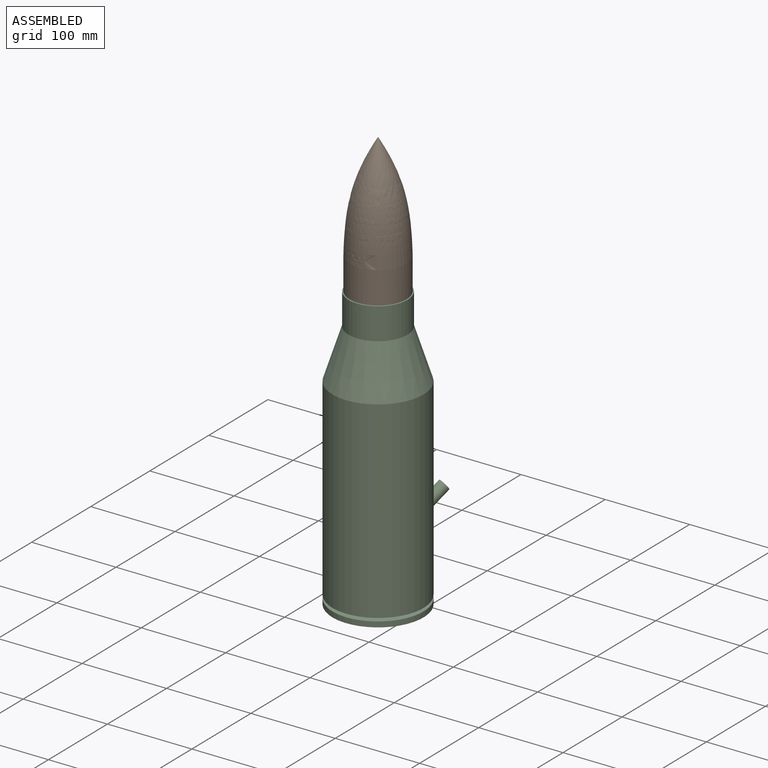
[diagram: assembled view]
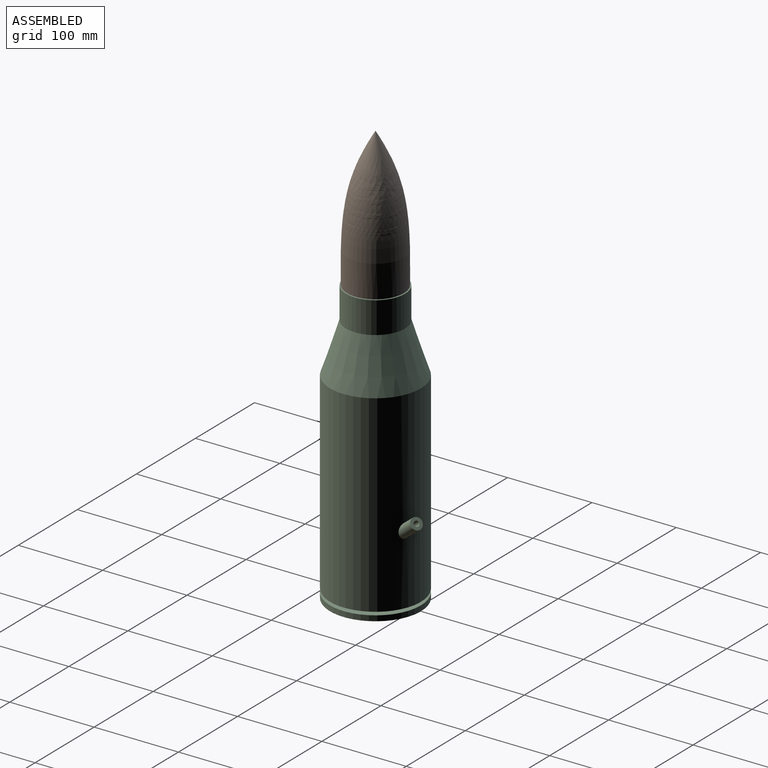
[diagram: assembled view, second angle]
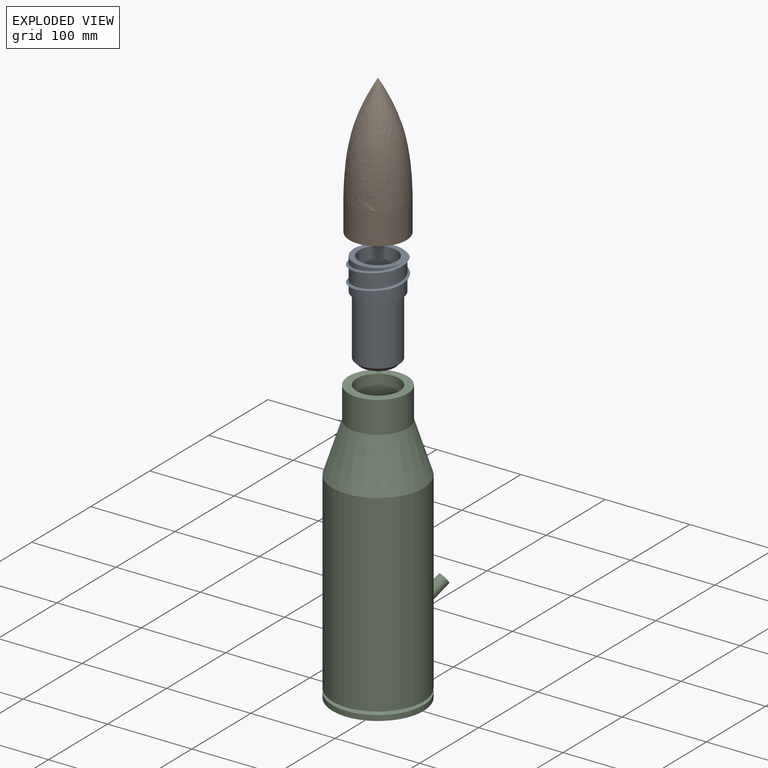
[diagram: exploded view]
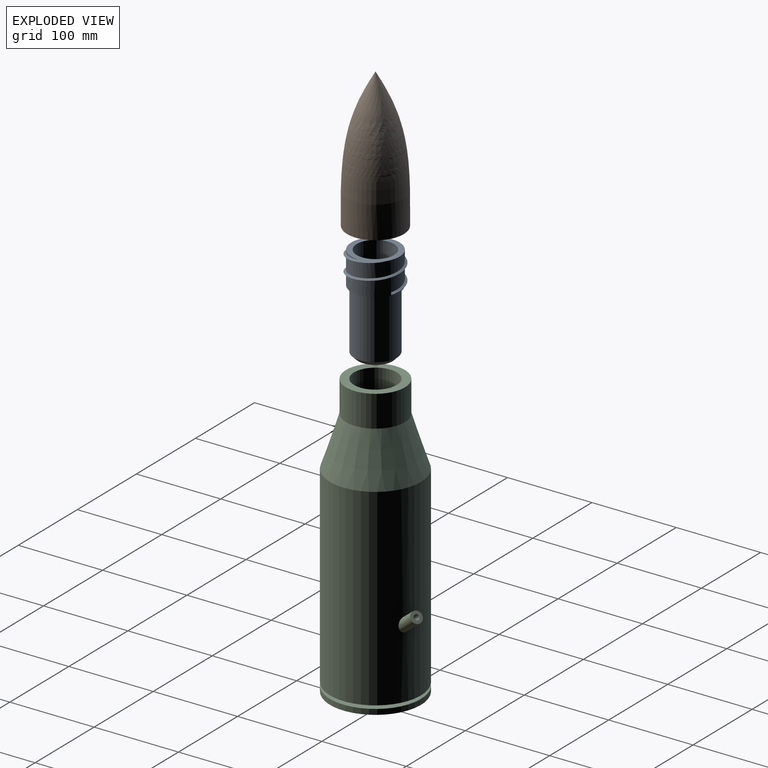
[diagram: exploded view, second angle]
ASSEMBLY  parts=3 mates=2
PART A: 13 faces, bbox 62.5x65.7x116.5 mm
  f0: bspline ~65.43x62.22mm, area 1025.1mm2, adj f1,f2,f9,f10,f11
  f1: bspline ~65.43x62.22mm, area 1066.9mm2, adj f0,f2,f8,f9,f11
  f2: plane 57.42x57.42mm, normal (0,0,1), area 1049.5mm2, adj f0,f1,f3,f9,f10
  f3: cylinder r=22.23mm len=111.13mm, axis (0,0,1), area 15517.9mm2, adj f2,f4
  f4: plane 44.45x44.45mm, normal (0,0,1), area 1551.8mm2, adj f3
  f5: plane 40.64x40.64mm, normal (0,0,-1), area 1297.2mm2, adj f12
  f6: cylinder r=25.4mm len=71.12mm, axis (0,0,1), area 11350.2mm2, adj f7,f12
  f7: plane 57.15x57.15mm, normal (0,0,-1), area 538.4mm2, adj f6,f8
  f8: cylinder r=28.57mm len=57.15mm, axis (0,0,1), area 1798.7mm2, adj f1,f7,f9,f11
  f9: cylinder r=28.57mm len=57.15mm, axis (0,0,1), area 2893.5mm2, adj f0,f1,f2,f8,f10
  f10: cylinder r=28.57mm len=57.15mm, axis (0,0,1), area 1151.3mm2, adj f0,f2,f9
  f11: plane 2.93x2.54mm, normal (0,-1,0), area 3.7mm2, adj f0,f1,f8
  f12: cone r=25.4mm half-angle=45deg, axis (0,0,1), area 1031.9mm2, adj f5,f6
PART B: 11 faces, bbox 67.3x67.3x168.3 mm
  f0: cylinder r=28.57mm len=57.15mm, axis (0,0,-1), area 5846.2mm2, adj f1,f2,f7,f8,f9,f10
  f1: plane 57.16x57.16mm, normal (0,0,-1), area 737.8mm2, adj f0,f5,f6,f9
  f2: plane 67.32x67.32mm, normal (0,0,-1), area 950.7mm2, adj f0,f3,f7,f9,f10
  f3: cylinder r=33.65mm len=67.31mm, axis (0,0,-1), area 8056.6mm2, adj f2,f4
  f4: revolved ~127.11x67.22mm, area 19201.5mm2, adj f3
  f5: cone r=24.12mm half-angle=36.7deg, axis (0,0,-1), area 3055.6mm2, adj f1
  f6: cylinder r=28.57mm len=0.6mm, axis (0,0,1), area 0mm2, adj f1,f8,f9
  f7: plane 0.13x0.08mm, normal (0,1,0), area 0mm2, adj f0,f2,f9
  f8: plane 3.19x2.76mm, normal (0,-1,0), area 4.4mm2, adj f0,f6,f9,f10
  f9: bspline ~65.86x62.64mm, area 1175.5mm2, adj f0,f1,f2,f6,f7,f8,f10
  f10: bspline ~65.86x62.64mm, area 1131.6mm2, adj f0,f2,f8,f9
PART C: 24 faces, bbox 108x133.8x335.1 mm
  f0: cylinder r=53.98mm len=228.74mm, axis (0,0,-1), area 77391.8mm2, adj f3,f4,f18
  f1: cylinder r=44.45mm len=217.72mm, axis (0,0,-1), area 60622.4mm2, adj f8,f9,f16
  f2: cylinder r=33.86mm len=67.71mm, axis (0,0,-1), area 810.5mm2, adj f3,f12
  f3: plane 107.95x107.95mm, normal (0,0,-1), area 5551.4mm2, adj f0,f2
  f4: cone r=53.98mm half-angle=17.9deg, axis (0,0,-1), area 17293.5mm2, adj f0,f5
  f5: cylinder r=34.92mm len=69.85mm, axis (0,0,-1), area 8191.2mm2, adj f4,f6
  f6: plane 69.85x69.85mm, normal (0,0,1), area 1805.1mm2, adj f5,f7
  f7: cylinder r=25.4mm len=50.8mm, axis (0,0,-1), area 6196.9mm2, adj f6,f8
  f8: cone r=44.45mm half-angle=17.9deg, axis (0,0,-1), area 13587.7mm2, adj f1,f7
  f9: plane 88.9x88.9mm, normal (0,0,1), area 6207.2mm2, adj f1
  f10: plane 107.95x107.95mm, normal (0,0,-1), area 9152.4mm2, adj f11
  f11: cylinder r=53.98mm len=107.95mm, axis (0,0,-1), area 2153.5mm2, adj f10,f12
  f12: plane 107.95x107.95mm, normal (0,0,1), area 5551.4mm2, adj f2,f11
  f13: cone r=3.19mm half-angle=0.2deg, axis (0,-0.8,-0.6), area 99.1mm2, adj f14,f15
  f14: cylinder r=3.17mm len=17.6mm, axis (0,0.8,0.6), area 294.8mm2, adj f13,f17
  f15: plane 13.69x11mm, normal (0,-0.8,-0.6), area 115.1mm2, adj f13,f16
  f16: cylinder r=6.84mm len=28.13mm, axis (0,0.8,0.6), area 837.3mm2, adj f1,f15
  f17: cylinder r=44.45mm len=7.9mm, axis (0,0,-1), area 21.3mm2, adj f14,f23
  f18: cylinder r=6.84mm len=33.96mm, axis (0,0.8,0.6), area 1174.8mm2, adj f0,f21
  f19: cylinder r=3.17mm len=24.64mm, axis (0,0.8,0.6), area 472.1mm2, adj f20,f22
  f20: cone r=3.22mm half-angle=0.7deg, axis (0,0.8,0.6), area 69.1mm2, adj f19,f21
  f21: plane 13.69x11mm, normal (0,0.8,0.6), area 114.6mm2, adj f18,f20
  f22: cylinder r=53.98mm len=7.9mm, axis (0,0,-1), area 21.3mm2, adj f19,f23
  f23: cylinder r=2.15mm len=14.65mm, axis (0,0.8,0.6), area 160.4mm2, adj f17,f22
PLACE A rot(axis=(0,0,1),66.8deg) t=(290.09,-513.39,-139.04)mm
PLACE B rot(axis=(0,0,1),64.4deg) t=(290.09,-513.39,-138.84)mm
PLACE C rot(axis=(0,0,-1),23.2deg) t=(290.09,-513.39,-289.19)mm fixed
MATE slider A.f3 <-> C.f0  axis (0,0,-1) through (290.09,-513.39,-215.3)mm
MATE cylindrical B.f0 <-> A.f3  axis (0,0,-1) through (290.09,-513.39,-138.84)mm
